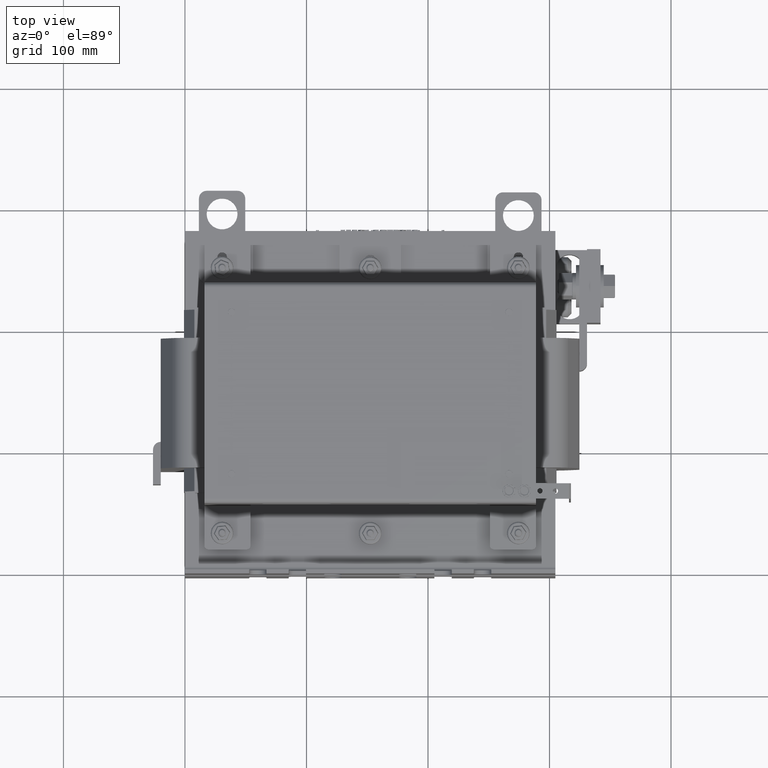
[diagram: clean part render]
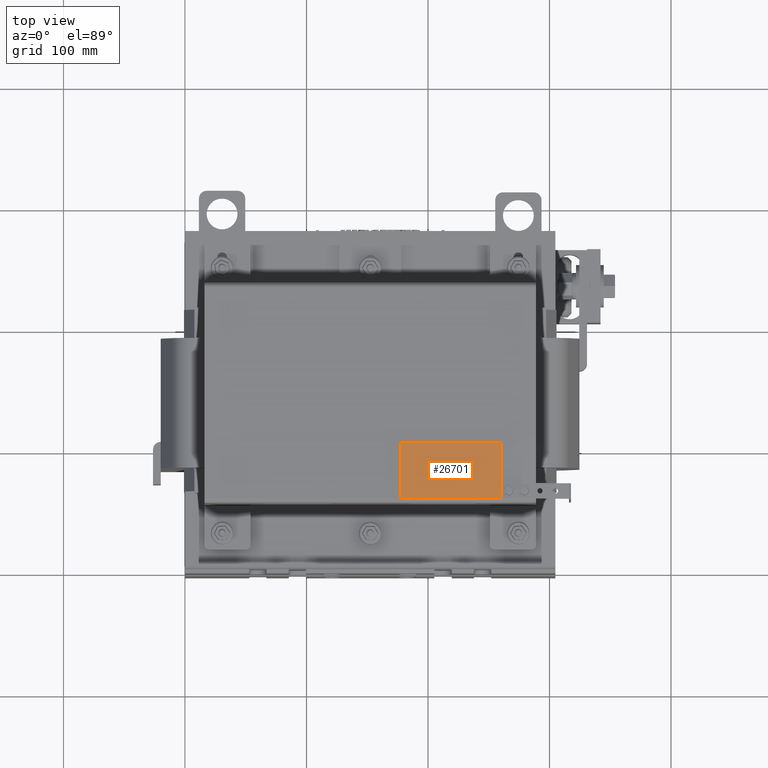
[diagram: same view with one face highlighted and labeled with its STEP entity id]
A machine part, top view. The second image highlights one B-rep face of the part: STEP entity #26701.
In plain terms, the highlighted planar face has unit normal (-0, 0, -1).
Its self-contained STEP definition (entity closure, byte-faithful):
#2810=PLANE('',#29707);
#4198=FACE_OUTER_BOUND('',#5890,.T.);
#5890=EDGE_LOOP('',(#24549,#24550,#24551,#24552));
#8292=LINE('',#47278,#10695);
#8296=LINE('',#47286,#10699);
#8299=LINE('',#47292,#10702);
#8302=LINE('',#47297,#10705);
#10695=VECTOR('',#36394,0.393700787401575);
#10699=VECTOR('',#36400,0.393700787401575);
#10702=VECTOR('',#36405,0.393700787401575);
#10705=VECTOR('',#36410,0.393700787401575);
#13832=VERTEX_POINT('',#47276);
#13833=VERTEX_POINT('',#47277);
#13836=VERTEX_POINT('',#47285);
#13838=VERTEX_POINT('',#47291);
#17419=EDGE_CURVE('',#13832,#13833,#8292,.T.);
#17423=EDGE_CURVE('',#13833,#13836,#8296,.T.);
#17426=EDGE_CURVE('',#13836,#13838,#8299,.T.);
#17429=EDGE_CURVE('',#13838,#13832,#8302,.T.);
#24549=ORIENTED_EDGE('',*,*,#17429,.T.);
#24550=ORIENTED_EDGE('',*,*,#17419,.T.);
#24551=ORIENTED_EDGE('',*,*,#17423,.T.);
#24552=ORIENTED_EDGE('',*,*,#17426,.T.);
#26701=ADVANCED_FACE('',(#4198),#2810,.F.);
#29707=AXIS2_PLACEMENT_3D('',#47299,#36412,#36413);
#36394=DIRECTION('',(0.,1.075927825197E-16,-1.));
#36400=DIRECTION('',(0.,-1.,0.));
#36405=DIRECTION('',(0.,0.,1.));
#36410=DIRECTION('',(0.,1.,3.82160156490739E-16));
#36412=DIRECTION('center_axis',(1.,0.,0.));
#36413=DIRECTION('ref_axis',(0.,0.,-1.));
#47276=CARTESIAN_POINT('',(0.,1.83,6.99353086378052E-16));
#47277=CARTESIAN_POINT('',(0.,1.83,-3.25));
#47278=CARTESIAN_POINT('',(0.,1.83,6.99353086378052E-16));
#47285=CARTESIAN_POINT('',(0.,0.,-3.25));
#47286=CARTESIAN_POINT('',(0.,1.83,-3.25));
#47291=CARTESIAN_POINT('',(0.,0.,0.));
#47292=CARTESIAN_POINT('',(0.,0.,-3.25));
#47297=CARTESIAN_POINT('',(0.,0.,0.));
#47299=CARTESIAN_POINT('Origin',(0.,0.915,-1.625));